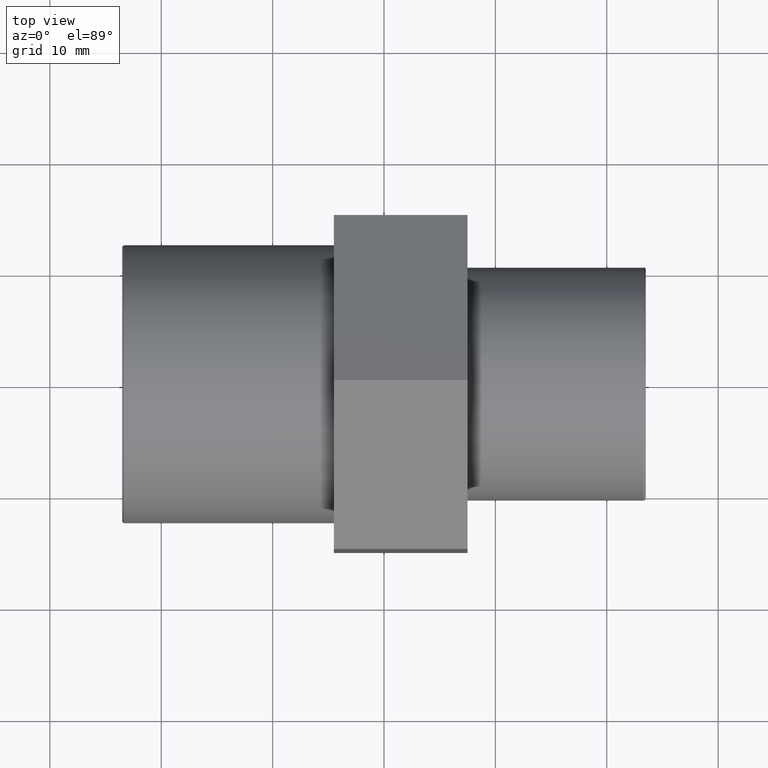
[diagram: clean part render]
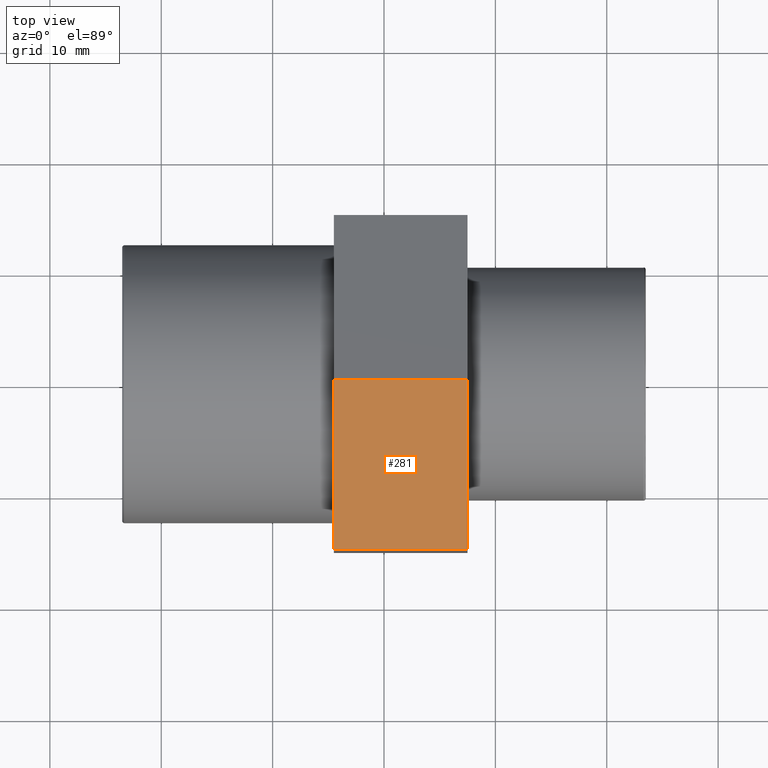
[diagram: same view with one face highlighted and labeled with its STEP entity id]
A machine part, top view. The second image highlights one B-rep face of the part: STEP entity #281.
In plain terms, the highlighted planar face has unit normal (0, -0.4969, 0.8678).
Its self-contained STEP definition (entity closure, byte-faithful):
#54=FACE_OUTER_BOUND('',#75,.T.);
#75=EDGE_LOOP('',(#208,#209,#210,#211));
#111=LINE('',#434,#129);
#114=LINE('',#440,#132);
#115=LINE('',#442,#133);
#116=LINE('',#443,#134);
#129=VECTOR('',#343,12.);
#132=VECTOR('',#348,17.3205080756888);
#133=VECTOR('',#349,12.);
#134=VECTOR('',#350,17.3205080756888);
#147=VERTEX_POINT('',#431);
#148=VERTEX_POINT('',#433);
#150=VERTEX_POINT('',#439);
#151=VERTEX_POINT('',#441);
#173=EDGE_CURVE('',#148,#147,#111,.T.);
#176=EDGE_CURVE('',#147,#150,#114,.T.);
#177=EDGE_CURVE('',#151,#150,#115,.T.);
#178=EDGE_CURVE('',#151,#148,#116,.T.);
#208=ORIENTED_EDGE('',*,*,#176,.T.);
#209=ORIENTED_EDGE('',*,*,#177,.F.);
#210=ORIENTED_EDGE('',*,*,#178,.T.);
#211=ORIENTED_EDGE('',*,*,#173,.T.);
#269=PLANE('',#304);
#281=ADVANCED_FACE('',(#54),#269,.T.);
#304=AXIS2_PLACEMENT_3D('',#438,#346,#347);
#343=DIRECTION('',(1.,6.1679056923619E-16,0.));
#346=DIRECTION('center_axis',(3.06460006777582E-16,-0.4968623420379,0.867829368634534));
#347=DIRECTION('ref_axis',(6.21724893790088E-16,-0.867829368634534,-0.4968623420379));
#348=DIRECTION('',(-5.84531452177392E-16,0.867829368634534,0.4968623420379));
#349=DIRECTION('',(1.,6.1679056923619E-16,0.));
#350=DIRECTION('',(5.84531452177392E-16,-0.867829368634534,-0.4968623420379));
#431=CARTESIAN_POINT('',(7.50000000000002,-14.9685579244456,8.7144864256315));
#433=CARTESIAN_POINT('',(-4.5,-14.9685579244456,8.7144864256315));
#434=CARTESIAN_POINT('',(-4.5,-14.9685579244456,8.7144864256315));
#438=CARTESIAN_POINT('Origin',(-4.50000000000001,0.0626876633086886,17.3203946334046));
#439=CARTESIAN_POINT('',(7.50000000000001,0.0626876633086959,17.3203946334046));
#440=CARTESIAN_POINT('',(7.50000000000002,-3.6951237336299,15.1689175814613));
#441=CARTESIAN_POINT('',(-4.50000000000001,0.0626876633086886,17.3203946334046));
#442=CARTESIAN_POINT('',(-4.50000000000001,0.0626876633086886,17.3203946334046));
#443=CARTESIAN_POINT('',(-4.50000000000001,0.0626876633086886,17.3203946334046));